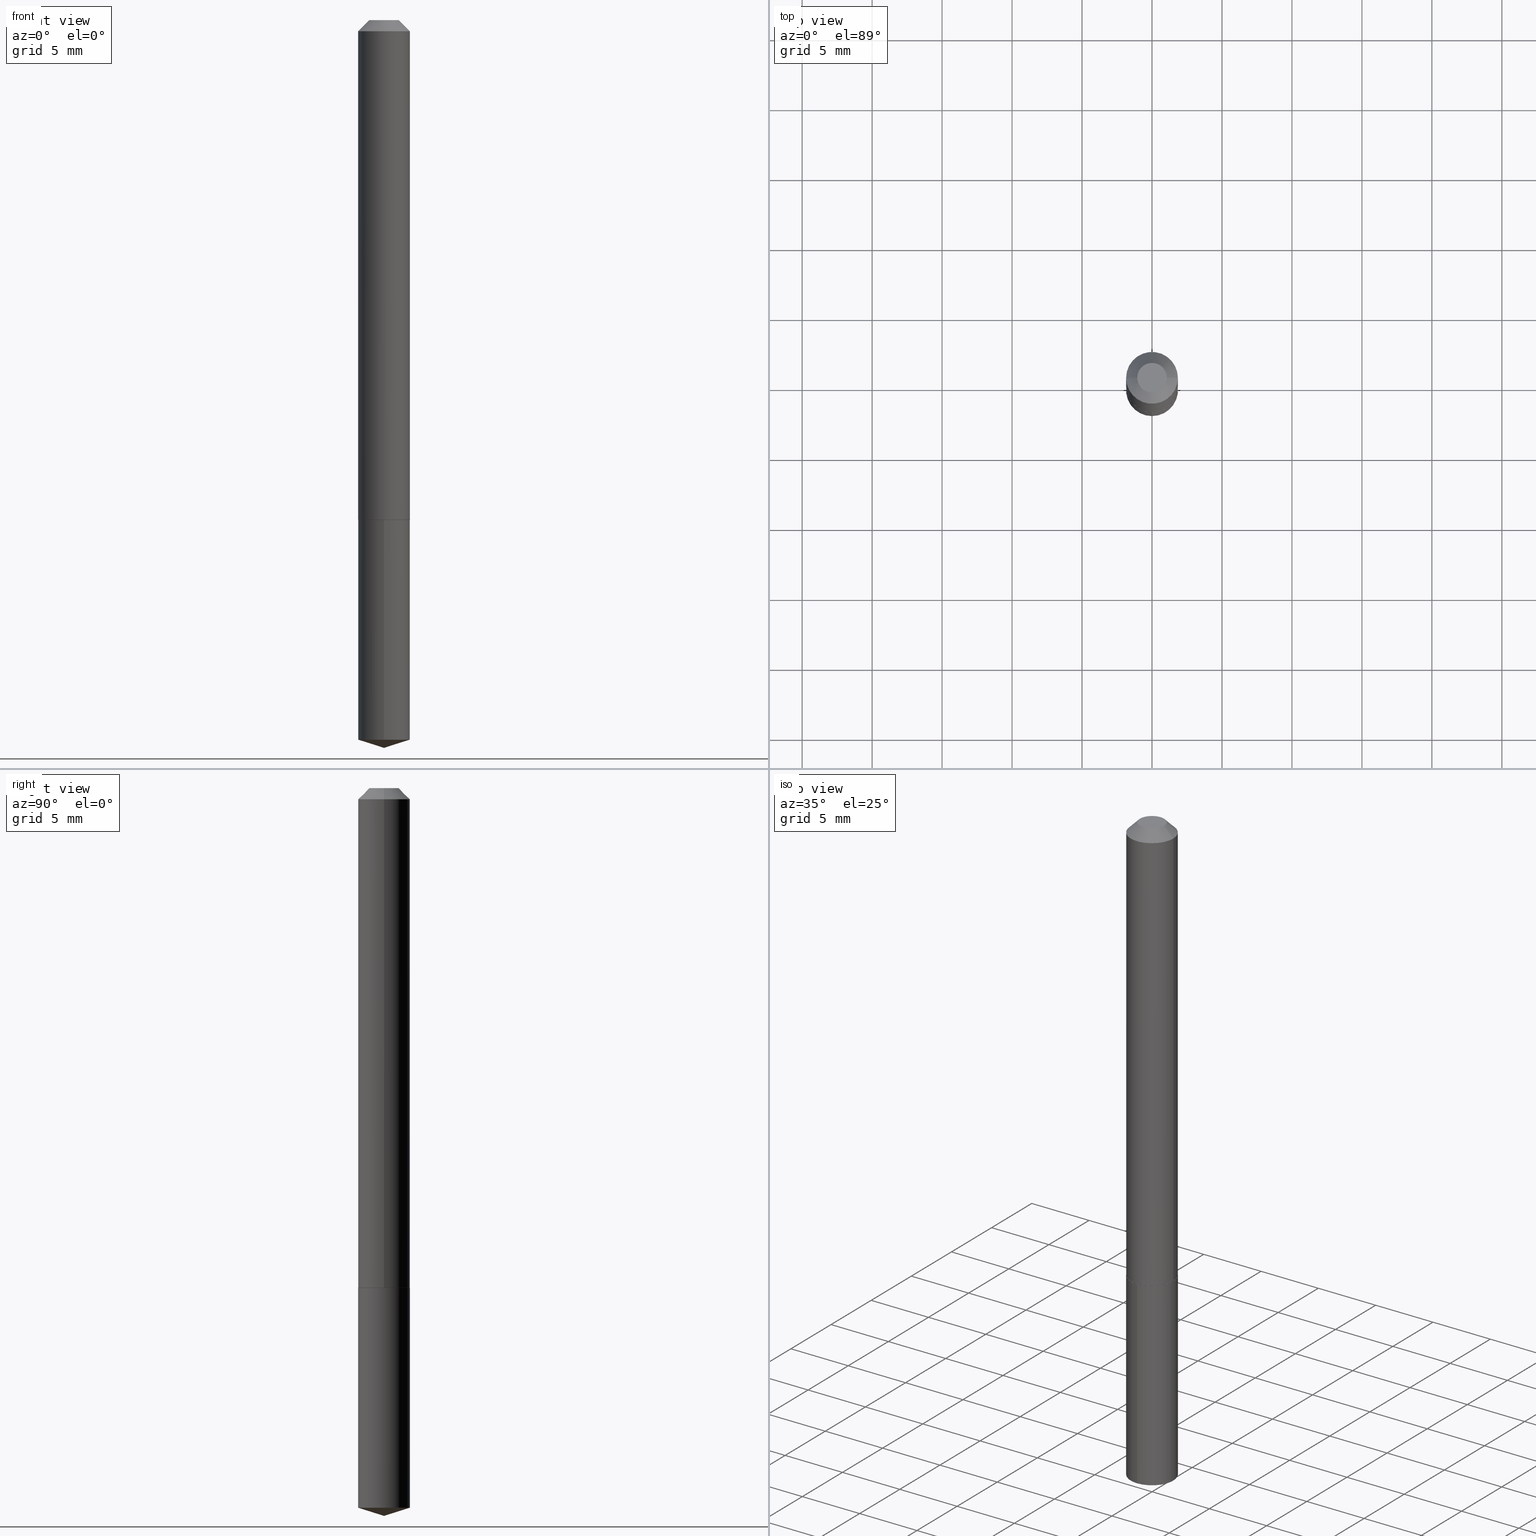
[diagram: canonical four-view strip — front | top / right | iso, engineering-drawing reading convention]
A machine part, canonical four-view strip (front | top / right | iso — engineering-drawing reading convention). The complete STEP part file that produces these views, byte-faithful:
ISO-10303-21;
HEADER;
FILE_DESCRIPTION (( 'STEP AP203' ),
    '1' );
FILE_NAME ('68685.STEP',
    '2024-04-23T13:36:15',
    ( '' ),
    ( '' ),
    'SwSTEP 2.0',
    'SolidWorks 2023',
    '' );
FILE_SCHEMA (( 'CONFIG_CONTROL_DESIGN' ));
ENDSEC;

DATA;
#1 = AXIS2_PLACEMENT_3D ( 'NONE', #245, #310, #218 ) ;
#2 = ORIENTED_EDGE ( 'NONE', *, *, #133, .T. ) ;
#3 = DIRECTION ( 'NONE',  ( -6.982962677686268288E-15, -1.000000000000000000, 3.500519750498734803E-15 ) ) ;
#4 = EDGE_CURVE ( 'NONE', #235, #152, #99, .T. ) ;
#5 = APPROVAL_STATUS ( 'not_yet_approved' ) ;
#6 = DIRECTION ( 'NONE',  ( 1.000000000000000000, -6.982962677686262766E-15, 0.000000000000000000 ) ) ;
#7 = DIRECTION ( 'NONE',  ( -2.445468806185136597E-29, 3.491481338843145583E-15, 1.000000000000000000 ) ) ;
#8 = DIRECTION ( 'NONE',  ( 2.438088387897960049E-29, -3.491481338843145188E-15, -1.000000000000000000 ) ) ;
#9 = APPROVAL ( #5, 'UNSPECIFIED' ) ;
#10 = CARTESIAN_POINT ( 'NONE',  ( 0.07285000000000008136, -5.087088310694450726E-16, 3.552294781167343726E-30 ) ) ;
#11 = AXIS2_PLACEMENT_3D ( 'NONE', #38, #90, #68 ) ;
#12 = LINE ( 'NONE', #347, #234 ) ;
#13 = CARTESIAN_POINT ( 'NONE',  ( 3.435883672690118017E-29, -4.905531281074621455E-15, -1.405000000000000471 ) ) ;
#14 = DIRECTION ( 'NONE',  ( -2.445479730124527692E-29, 3.491465695140185611E-15, 1.000000000000000000 ) ) ;
#15 = COORDINATED_UNIVERSAL_TIME_OFFSET ( 5, 0, .BEHIND. ) ;
#16 = CARTESIAN_POINT ( 'NONE',  ( 3.437106407093210258E-29, -4.907277021744042169E-15, -1.405500000000000416 ) ) ;
#17 = CARTESIAN_POINT ( 'NONE',  ( -0.07284999999999999809, -1.989689653455500531E-15, -0.03125000000000020817 ) ) ;
#18 = PRODUCT_RELATED_PRODUCT_CATEGORY ( 'detail', '', ( #43 ) ) ;
#19 = ADVANCED_FACE ( 'NONE', ( #367 ), #211, .T. ) ;
#20 = CALENDAR_DATE ( 2024, 23, 4 ) ;
#21 = DESIGN_CONTEXT ( 'detailed design', #151, 'design' ) ;
#22 = ORIENTED_EDGE ( 'NONE', *, *, #53, .F. ) ;
#23 = EDGE_LOOP ( 'NONE', ( #261, #69, #302, #293 ) ) ;
#24 = EDGE_CURVE ( 'NONE', #387, #87, #39, .T. ) ;
#25 = ORIENTED_EDGE ( 'NONE', *, *, #255, .F. ) ;
#26 = CIRCLE ( 'NONE', #376, 0.07284999999999999809 ) ;
#27 = AXIS2_PLACEMENT_3D ( 'NONE', #203, #253, #374 ) ;
#28 = DIRECTION ( 'NONE',  ( -2.445479730124527692E-29, 3.491465695140185611E-15, 1.000000000000000000 ) ) ;
#29 = ORIENTED_EDGE ( 'NONE', *, *, #219, .T. ) ;
#30 = DIRECTION ( 'NONE',  ( 1.000000000000000000, -6.982962677686265922E-15, 0.000000000000000000 ) ) ;
#31 = PRODUCT_DEFINITION_SHAPE ( 'NONE', 'NONE',  #319 ) ;
#32 = ORIENTED_EDGE ( 'NONE', *, *, #274, .F. ) ;
#33 = AXIS2_PLACEMENT_3D ( 'NONE', #335, #298, #30 ) ;
#34 = VECTOR ( 'NONE', #232, 39.37007874015748143 ) ;
#35 = VERTEX_POINT ( 'NONE', #166 ) ;
#36 = DIRECTION ( 'NONE',  ( -2.445468806185136877E-29, 3.491481338843145188E-15, 1.000000000000000000 ) ) ;
#37 = LINE ( 'NONE', #336, #370 ) ;
#38 = CARTESIAN_POINT ( 'NONE',  ( 0.000000000000000000, 0.000000000000000000, 0.000000000000000000 ) ) ;
#39 = LINE ( 'NONE', #244, #305 ) ;
#40 =( NAMED_UNIT ( * ) PLANE_ANGLE_UNIT ( ) SI_UNIT ( $, .RADIAN. ) );
#41 = CARTESIAN_POINT ( 'NONE',  ( -9.127235878254760257E-28, 1.303115287779123031E-13, 37.32287874015748486 ) ) ;
#42 = APPLICATION_CONTEXT ( 'configuration controlled 3d designs of mechanical parts and assemblies' ) ;
#43 = PRODUCT ( '68685', '68685', '', ( #154 ) ) ;
#44 = PLANE ( 'NONE',  #331 ) ;
#45 = CYLINDRICAL_SURFACE ( 'NONE', #201, 0.07285000000000008136 ) ;
#46 = CARTESIAN_POINT ( 'NONE',  ( 4.950199262242735312E-29, -7.067553278479676928E-15, -2.024230483230166300 ) ) ;
#47 = CIRCLE ( 'NONE', #199, 0.07235000000000024745 ) ;
#48 = ADVANCED_FACE ( 'NONE', ( #273 ), #65, .F. ) ;
#49 = CARTESIAN_POINT ( 'NONE',  ( 0.04159999999999999809, -4.471463938419002611E-16, 2.449293598320496415E-19 ) ) ;
#50 = FACE_OUTER_BOUND ( 'NONE', #356, .T. ) ;
#51 = DATE_TIME_ROLE ( 'creation_date' ) ;
#52 = DIRECTION ( 'NONE',  ( -6.982962677686265922E-15, -1.000000000000000000, 3.749962928845934523E-15 ) ) ;
#53 = EDGE_CURVE ( 'NONE', #189, #87, #162, .T. ) ;
#54 = CARTESIAN_POINT ( 'NONE',  ( 5.176303830012824729E-16, 0.07284999999999293430, -2.024230483230166744 ) ) ;
#55 = VECTOR ( 'NONE', #329, 39.37007874015748143 ) ;
#56 = PERSON ( 'UNSPECIFIED', 'UNSPECIFIED', 'UNSPECIFIED', ('UNSPECIFIED'), ('UNSPECIFIED'), ('UNSPECIFIED') ) ;
#57 = PERSON_AND_ORGANIZATION ( #56, #183 ) ;
#58 = DATE_AND_TIME ( #353, #288 ) ;
#59 = VECTOR ( 'NONE', #36, 39.37007874015748143 ) ;
#60 = SECURITY_CLASSIFICATION ( '', '', #291 ) ;
#61 = ORIENTED_EDGE ( 'NONE', *, *, #24, .F. ) ;
#62 = DATE_TIME_ROLE ( 'classification_date' ) ;
#63 = CARTESIAN_POINT ( 'NONE',  ( -5.989671091818665474E-48, 8.551662891793964028E-34, 2.449293598294711584E-19 ) ) ;
#64 = ORIENTED_EDGE ( 'NONE', *, *, #70, .T. ) ;
#65 = PLANE ( 'NONE',  #357 ) ;
#66 = CONICAL_SURFACE ( 'NONE', #147, 0.07284999999999999809, 0.7853981633974449483 ) ;
#67 = DIRECTION ( 'NONE',  ( -6.659769872151627355E-15, -0.9537169507482260444, 0.3007057995042761722 ) ) ;
#68 = DIRECTION ( 'NONE',  ( 1.000000000000000000, 0.000000000000000000, 0.000000000000000000 ) ) ;
#69 = ORIENTED_EDGE ( 'NONE', *, *, #117, .T. ) ;
#70 = EDGE_CURVE ( 'NONE', #214, #152, #375, .T. ) ;
#71 = MANIFOLD_SOLID_BREP ( 'Body-Move/Copy2[2]', #241 ) ;
#72 = ORIENTED_EDGE ( 'NONE', *, *, #165, .F. ) ;
#73 = CLOSED_SHELL ( 'NONE', ( #148, #366, #315, #233, #193 ) ) ;
#74 =( NAMED_UNIT ( * ) SI_UNIT ( $, .STERADIAN. ) SOLID_ANGLE_UNIT ( ) );
#75 = ORIENTED_EDGE ( 'NONE', *, *, #81, .T. ) ;
#76 = FACE_OUTER_BOUND ( 'NONE', #113, .T. ) ;
#77 = DIRECTION ( 'NONE',  ( -2.445479730124527692E-29, 3.491465695140185611E-15, 1.000000000000000000 ) ) ;
#78 = CARTESIAN_POINT ( 'NONE',  ( 3.437106407093210258E-29, -4.907277021744042169E-15, -1.405500000000000416 ) ) ;
#79 = AXIS2_PLACEMENT_3D ( 'NONE', #303, #247, #3 ) ;
#80 = EDGE_CURVE ( 'NONE', #189, #157, #390, .T. ) ;
#81 = EDGE_CURVE ( 'NONE', #109, #35, #141, .T. ) ;
#82 = CARTESIAN_POINT ( 'NONE',  ( 7.642090019328602662E-31, -1.091087918388490267E-16, -0.03125000000000020817 ) ) ;
#83 = CIRCLE ( 'NONE', #118, 0.07285000000000016462 ) ;
#84 = EDGE_CURVE ( 'NONE', #152, #214, #175, .T. ) ;
#85 = CARTESIAN_POINT ( 'NONE',  ( 3.437106407093210258E-29, -4.907277021744042169E-15, -1.405500000000000416 ) ) ;
#86 = ORIENTED_EDGE ( 'NONE', *, *, #24, .T. ) ;
#87 = VERTEX_POINT ( 'NONE', #197 ) ;
#88 = FACE_OUTER_BOUND ( 'NONE', #270, .T. ) ;
#89 = EDGE_LOOP ( 'NONE', ( #61, #190, #296 ) ) ;
#90 = DIRECTION ( 'NONE',  ( 0.000000000000000000, 0.000000000000000000, 1.000000000000000000 ) ) ;
#91 = ORIENTED_EDGE ( 'NONE', *, *, #92, .T. ) ;
#92 = EDGE_CURVE ( 'NONE', #300, #157, #26, .T. ) ;
#93 = AXIS2_PLACEMENT_3D ( 'NONE', #136, #130, #186 ) ;
#94 = ORIENTED_EDGE ( 'NONE', *, *, #81, .F. ) ;
#95 = CARTESIAN_POINT ( 'NONE',  ( 4.950199262242735312E-29, -7.067553278479676928E-15, -2.024230483230166300 ) ) ;
#96 = PERSON_AND_ORGANIZATION ( #56, #183 ) ;
#97 = ORIENTED_EDGE ( 'NONE', *, *, #84, .F. ) ;
#98 = CONICAL_SURFACE ( 'NONE', #93, 0.07284999999999999809, 0.7853981633974449483 ) ;
#99 = LINE ( 'NONE', #220, #280 ) ;
#100 = FACE_OUTER_BOUND ( 'NONE', #238, .T. ) ;
#101 = APPROVAL_DATE_TIME ( #216, #9 ) ;
#102 = DIRECTION ( 'NONE',  ( 2.445479730124527411E-29, -3.491465695140185611E-15, -1.000000000000000000 ) ) ;
#103 = EDGE_CURVE ( 'NONE', #180, #214, #12, .T. ) ;
#104 = VECTOR ( 'NONE', #223, 39.37007874015748143 ) ;
#105 = CARTESIAN_POINT ( 'NONE',  ( 5.006386372776774665E-29, -7.147728571090988468E-15, -2.047200000000000131 ) ) ;
#106 = CYLINDRICAL_SURFACE ( 'NONE', #325, 0.07284999999999999809 ) ;
#107 = APPROVAL ( #208, 'UNSPECIFIED' ) ;
#108 = PERSON_AND_ORGANIZATION ( #56, #183 ) ;
#109 = VERTEX_POINT ( 'NONE', #373 ) ;
#110 = AXIS2_PLACEMENT_3D ( 'NONE', #254, #276, #176 ) ;
#111 = APPROVAL_PERSON_ORGANIZATION ( #173, #107, #149 ) ;
#112 = APPROVAL_ROLE ( '' ) ;
#113 = EDGE_LOOP ( 'NONE', ( #182, #86, #22 ) ) ;
#114 = ORIENTED_EDGE ( 'NONE', *, *, #4, .T. ) ;
#115 = DIMENSIONAL_EXPONENTS ( 1.000000000000000000, 0.000000000000000000, 0.000000000000000000, 0.000000000000000000, 0.000000000000000000, 0.000000000000000000, 0.000000000000000000 ) ;
#116 = COORDINATED_UNIVERSAL_TIME_OFFSET ( 5, 0, .BEHIND. ) ;
#117 = EDGE_CURVE ( 'NONE', #160, #272, #267, .T. ) ;
#118 = AXIS2_PLACEMENT_3D ( 'NONE', #328, #265, #144 ) ;
#119 = CALENDAR_DATE ( 2024, 23, 4 ) ;
#120 = UNCERTAINTY_MEASURE_WITH_UNIT (LENGTH_MEASURE( 1.000000000000000082E-05 ), #191, 'distance_accuracy_value', 'NONE');
#121 = ORIENTED_EDGE ( 'NONE', *, *, #165, .T. ) ;
#122 = ORIENTED_EDGE ( 'NONE', *, *, #103, .T. ) ;
#123 = DIRECTION ( 'NONE',  ( -1.000000000000000000, 6.982962677686265922E-15, 0.000000000000000000 ) ) ;
#124 = CARTESIAN_POINT ( 'NONE',  ( 5.176303830012672873E-16, 0.07284999999999508535, -1.405500000000000638 ) ) ;
#125 = DIRECTION ( 'NONE',  ( 2.445468806185136597E-29, -3.491481338843145583E-15, -1.000000000000000000 ) ) ;
#126 = PERSON_AND_ORGANIZATION_ROLE ( 'design_owner' ) ;
#127 = ORIENTED_EDGE ( 'NONE', *, *, #372, .F. ) ;
#128 = DIRECTION ( 'NONE',  ( 0.7071067811865595631, -2.468850131082382884E-15, 0.7071067811865354713 ) ) ;
#129 = ORIENTED_EDGE ( 'NONE', *, *, #4, .F. ) ;
#130 = DIRECTION ( 'NONE',  ( 2.445468806185136597E-29, -3.491481338843145583E-15, -1.000000000000000000 ) ) ;
#131 = CALENDAR_DATE ( 2024, 23, 4 ) ;
#132 = DIRECTION ( 'NONE',  ( -1.000000000000000000, 6.982962677686265922E-15, -4.876176775795935793E-29 ) ) ;
#133 = EDGE_CURVE ( 'NONE', #87, #189, #358, .T. ) ;
#134 = AXIS2_PLACEMENT_3D ( 'NONE', #240, #170, #312 ) ;
#135 = CARTESIAN_POINT ( 'NONE',  ( 0.000000000000000000, 0.000000000000000000, 0.000000000000000000 ) ) ;
#136 = CARTESIAN_POINT ( 'NONE',  ( 7.642090019328602662E-31, -1.091087918388490267E-16, -0.03125000000000020817 ) ) ;
#137 = DIRECTION ( 'NONE',  ( -0.7071067811865451302, 2.468850131082231817E-15, -0.7071067811865499042 ) ) ;
#138 = CC_DESIGN_PERSON_AND_ORGANIZATION_ASSIGNMENT ( #381, #386, ( #388 ) ) ;
#139 = DIRECTION ( 'NONE',  ( 1.000000000000000000, -6.982962677686262766E-15, 0.000000000000000000 ) ) ;
#140 = DIRECTION ( 'NONE',  ( 1.000000000000000000, -6.982962677686266711E-15, 4.876176775795936353E-29 ) ) ;
#141 = CIRCLE ( 'NONE', #266, 0.07235000000000024745 ) ;
#142 = LOCAL_TIME ( 9, 36, 15.00000000000000000, #181 ) ;
#143 = FACE_OUTER_BOUND ( 'NONE', #362, .T. ) ;
#144 = DIRECTION ( 'NONE',  ( 1.000000000000000000, -6.982962677686262766E-15, 0.000000000000000000 ) ) ;
#145 = DIRECTION ( 'NONE',  ( -2.445479730124527692E-29, 3.491465695140185611E-15, 1.000000000000000000 ) ) ;
#146 = ORIENTED_EDGE ( 'NONE', *, *, #92, .F. ) ;
#147 = AXIS2_PLACEMENT_3D ( 'NONE', #297, #125, #123 ) ;
#148 = ADVANCED_FACE ( 'NONE', ( #50 ), #204, .T. ) ;
#149 = APPROVAL_ROLE ( '' ) ;
#150 = ORIENTED_EDGE ( 'NONE', *, *, #278, .T. ) ;
#151 = APPLICATION_CONTEXT ( 'configuration controlled 3d designs of mechanical parts and assemblies' ) ;
#152 = VERTEX_POINT ( 'NONE', #172 ) ;
#153 = AXIS2_PLACEMENT_3D ( 'NONE', #41, #28, #363 ) ;
#154 = MECHANICAL_CONTEXT ( 'NONE', #42, 'mechanical' ) ;
#155 = DIRECTION ( 'NONE',  ( -2.445479730124527692E-29, 3.491465695140185611E-15, 1.000000000000000000 ) ) ;
#156 = EDGE_CURVE ( 'NONE', #387, #189, #379, .T. ) ;
#157 = VERTEX_POINT ( 'NONE', #342 ) ;
#158 = DIRECTION ( 'NONE',  ( 1.000000000000000000, -6.982962677686266711E-15, 4.876176775795936353E-29 ) ) ;
#159 = APPLICATION_PROTOCOL_DEFINITION ( 'international standard', 'config_control_design', 1994, #42 ) ;
#160 = VERTEX_POINT ( 'NONE', #277 ) ;
#161 = CC_DESIGN_DATE_AND_TIME_ASSIGNMENT ( #316, #51, ( #319 ) ) ;
#162 = CIRCLE ( 'NONE', #369, 0.07284999999999999809 ) ;
#163 = ORIENTED_EDGE ( 'NONE', *, *, #326, .T. ) ;
#164 = FACE_OUTER_BOUND ( 'NONE', #330, .T. ) ;
#165 = EDGE_CURVE ( 'NONE', #157, #300, #287, .T. ) ;
#166 = CARTESIAN_POINT ( 'NONE',  ( -0.07235000000000024745, -4.390550125247498303E-15, -1.405500000000000416 ) ) ;
#167 = DIRECTION ( 'NONE',  ( -0.7071067811865595631, 7.493145998870398336E-15, 0.7071067811865354713 ) ) ;
#168 = CC_DESIGN_PERSON_AND_ORGANIZATION_ASSIGNMENT ( #108, #286, ( #388 ) ) ;
#169 = CYLINDRICAL_SURFACE ( 'NONE', #260, 0.07285000000000008136 ) ;
#170 = DIRECTION ( 'NONE',  ( -2.438088387897960049E-29, 3.491481338843145188E-15, 1.000000000000000000 ) ) ;
#171 = CARTESIAN_POINT ( 'NONE',  ( 0.07285000000000016462, -5.414240112144066527E-15, -1.405000000000000471 ) ) ;
#172 = CARTESIAN_POINT ( 'NONE',  ( 0.07284999999999999809, -6.178176229082934830E-16, -0.03125000000000020817 ) ) ;
#173 = PERSON_AND_ORGANIZATION ( #56, #183 ) ;
#174 = CARTESIAN_POINT ( 'NONE',  ( 0.000000000000000000, 0.000000000000000000, 0.000000000000000000 ) ) ;
#175 = CIRCLE ( 'NONE', #221, 0.07284999999999999809 ) ;
#176 = DIRECTION ( 'NONE',  ( 1.000000000000000000, -6.982962677686262766E-15, 0.000000000000000000 ) ) ;
#177 = FACE_OUTER_BOUND ( 'NONE', #217, .T. ) ;
#178 = LOCAL_TIME ( 9, 36, 15.00000000000000000, #15 ) ;
#179 = EDGE_LOOP ( 'NONE', ( #250, #323, #150, #72 ) ) ;
#180 = VERTEX_POINT ( 'NONE', #318 ) ;
#181 = COORDINATED_UNIVERSAL_TIME_OFFSET ( 5, 0, .BEHIND. ) ;
#182 = ORIENTED_EDGE ( 'NONE', *, *, #156, .F. ) ;
#183 = ORGANIZATION ( 'UNSPECIFIED', 'UNSPECIFIED', '' ) ;
#184 = DIRECTION ( 'NONE',  ( -6.982962677686265922E-15, -1.000000000000000000, 3.749962928845934523E-15 ) ) ;
#185 = DIRECTION ( 'NONE',  ( 1.000000000000000000, -6.982962677686265922E-15, 4.876201187447971567E-29 ) ) ;
#186 = DIRECTION ( 'NONE',  ( -1.000000000000000000, 6.982962677686265922E-15, 0.000000000000000000 ) ) ;
#187 = DIRECTION ( 'NONE',  ( -6.982962677686265922E-15, -1.000000000000000000, 3.749962928845934523E-15 ) ) ;
#188 = CC_DESIGN_SECURITY_CLASSIFICATION ( #60, ( #388 ) ) ;
#189 = VERTEX_POINT ( 'NONE', #54 ) ;
#190 = ORIENTED_EDGE ( 'NONE', *, *, #156, .T. ) ;
#191 =( CONVERSION_BASED_UNIT ( 'INCH', #248 ) LENGTH_UNIT ( ) NAMED_UNIT ( #115 ) );
#192 = ORIENTED_EDGE ( 'NONE', *, *, #255, .T. ) ;
#193 = ADVANCED_FACE ( 'NONE', ( #143 ), #44, .F. ) ;
#194 = MANIFOLD_SOLID_BREP ( 'Body-Move/Copy2[1]', #73 ) ;
#195 = EDGE_LOOP ( 'NONE', ( #334, #192, #163, #284 ) ) ;
#196 = DIRECTION ( 'NONE',  ( -2.445468806185136597E-29, 3.491481338843145583E-15, 1.000000000000000000 ) ) ;
#197 = CARTESIAN_POINT ( 'NONE',  ( -5.087088310693949799E-16, -0.07285000000000707576, -2.024230483230165856 ) ) ;
#198 = AXIS2_PLACEMENT_3D ( 'NONE', #246, #364, #6 ) ;
#199 = AXIS2_PLACEMENT_3D ( 'NONE', #236, #196, #251 ) ;
#200 = DIRECTION ( 'NONE',  ( -2.445479730124527692E-29, 3.491465695140185611E-15, 1.000000000000000000 ) ) ;
#201 = AXIS2_PLACEMENT_3D ( 'NONE', #135, #7, #158 ) ;
#202 = CALENDAR_DATE ( 2024, 23, 4 ) ;
#203 = CARTESIAN_POINT ( 'NONE',  ( 3.437106407093210258E-29, -4.907277021744042169E-15, -1.405500000000000416 ) ) ;
#204 = CYLINDRICAL_SURFACE ( 'NONE', #313, 0.07284999999999999809 ) ;
#205 = ADVANCED_FACE ( 'NONE', ( #230 ), #169, .T. ) ;
#206 = VECTOR ( 'NONE', #167, 39.37007874015748143 ) ;
#207 = LOCAL_TIME ( 9, 36, 15.00000000000000000, #259 ) ;
#208 = APPROVAL_STATUS ( 'not_yet_approved' ) ;
#209 = CC_DESIGN_PERSON_AND_ORGANIZATION_ASSIGNMENT ( #96, #126, ( #43 ) ) ;
#210 = ADVANCED_FACE ( 'NONE', ( #100 ), #348, .T. ) ;
#211 = CONICAL_SURFACE ( 'NONE', #198, 0.07285000000000016462, 0.7853981633974653764 ) ;
#212 = EDGE_LOOP ( 'NONE', ( #383, #359 ) ) ;
#213 = FACE_OUTER_BOUND ( 'NONE', #262, .T. ) ;
#214 = VERTEX_POINT ( 'NONE', #17 ) ;
#215 = DIRECTION ( 'NONE',  ( -2.445479730124527972E-29, 3.491465695140185611E-15, 1.000000000000000000 ) ) ;
#216 = DATE_AND_TIME ( #131, #341 ) ;
#217 = EDGE_LOOP ( 'NONE', ( #94, #25 ) ) ;
#218 = DIRECTION ( 'NONE',  ( 1.000000000000000000, -6.982962677686265922E-15, 4.876201187447971567E-29 ) ) ;
#219 = EDGE_CURVE ( 'NONE', #272, #160, #83, .T. ) ;
#220 = CARTESIAN_POINT ( 'NONE',  ( 0.07284999999999999809, -6.088960709765050907E-16, -0.03125000000000020817 ) ) ;
#221 = AXIS2_PLACEMENT_3D ( 'NONE', #82, #343, #311 ) ;
#222 = AXIS2_PLACEMENT_3D ( 'NONE', #46, #200, #314 ) ;
#223 = DIRECTION ( 'NONE',  ( -2.445468806185136877E-29, 3.491481338843145188E-15, 1.000000000000000000 ) ) ;
#224 = CARTESIAN_POINT ( 'NONE',  ( -0.07285000000000008136, 5.176303830012335635E-16, -3.583444213250702632E-30 ) ) ;
#225 = CC_DESIGN_DATE_AND_TIME_ASSIGNMENT ( #58, #62, ( #60 ) ) ;
#226 = LINE ( 'NONE', #340, #55 ) ;
#227 = EDGE_CURVE ( 'NONE', #235, #180, #295, .T. ) ;
#228 = CARTESIAN_POINT ( 'NONE',  ( -5.087088310694100669E-16, -0.07285000000000491083, -1.405499999999999972 ) ) ;
#229 = PERSON_AND_ORGANIZATION ( #56, #183 ) ;
#230 = FACE_OUTER_BOUND ( 'NONE', #23, .T. ) ;
#231 = CC_DESIGN_APPROVAL ( #9, ( #319 ) ) ;
#232 = DIRECTION ( 'NONE',  ( 6.776566513254252615E-15, 0.9537169507482280428, 0.3007057995042695109 ) ) ;
#233 = ADVANCED_FACE ( 'NONE', ( #292 ), #106, .T. ) ;
#234 = VECTOR ( 'NONE', #137, 39.37007874015748143 ) ;
#235 = VERTEX_POINT ( 'NONE', #49 ) ;
#236 = CARTESIAN_POINT ( 'NONE',  ( 3.437106407093210258E-29, -4.907277021744042169E-15, -1.405500000000000416 ) ) ;
#237 = ORIENTED_EDGE ( 'NONE', *, *, #278, .F. ) ;
#238 = EDGE_LOOP ( 'NONE', ( #75, #332, #389, #352 ) ) ;
#239 = CARTESIAN_POINT ( 'NONE',  ( 3.437106407093210258E-29, -4.907277021744042169E-15, -1.405500000000000416 ) ) ;
#240 = CARTESIAN_POINT ( 'NONE',  ( 3.437106407093210258E-29, -4.907277021744042169E-15, -1.405500000000000416 ) ) ;
#241 = CLOSED_SHELL ( 'NONE', ( #354, #384, #210, #349, #19, #205, #290, #48 ) ) ;
#242 = CIRCLE ( 'NONE', #1, 0.04159999999999999809 ) ;
#243 = APPROVAL_ROLE ( '' ) ;
#244 = CARTESIAN_POINT ( 'NONE',  ( 5.006355396317304915E-29, -7.147772545540009329E-15, -2.047200000000000131 ) ) ;
#245 = CARTESIAN_POINT ( 'NONE',  ( -5.989671091818665474E-48, 8.551662891793964028E-34, 2.449293598294711584E-19 ) ) ;
#246 = CARTESIAN_POINT ( 'NONE',  ( 3.435883672690118017E-29, -4.905531281074621455E-15, -1.405000000000000471 ) ) ;
#247 = DIRECTION ( 'NONE',  ( -2.445479730124527692E-29, 3.491465695140185611E-15, 1.000000000000000000 ) ) ;
#248 = LENGTH_MEASURE_WITH_UNIT ( LENGTH_MEASURE( 0.02539999999999999897 ), #299 );
#249 = LINE ( 'NONE', #10, #104 ) ;
#250 = ORIENTED_EDGE ( 'NONE', *, *, #80, .F. ) ;
#251 = DIRECTION ( 'NONE',  ( 1.000000000000000000, -6.982962677686261977E-15, 0.000000000000000000 ) ) ;
#252 = DIRECTION ( 'NONE',  ( -6.982962677686265922E-15, -1.000000000000000000, 3.749962928845934523E-15 ) ) ;
#253 = DIRECTION ( 'NONE',  ( -2.445479730124527692E-29, 3.491465695140185611E-15, 1.000000000000000000 ) ) ;
#254 = CARTESIAN_POINT ( 'NONE',  ( 3.435883672690118017E-29, -4.905531281074621455E-15, -1.405000000000000471 ) ) ;
#255 = EDGE_CURVE ( 'NONE', #35, #109, #47, .T. ) ;
#256 = DATE_AND_TIME ( #119, #142 ) ;
#257 = DIRECTION ( 'NONE',  ( -2.445468806185136597E-29, 3.491481338843145583E-15, 1.000000000000000000 ) ) ;
#258 = ORIENTED_EDGE ( 'NONE', *, *, #380, .T. ) ;
#259 = COORDINATED_UNIVERSAL_TIME_OFFSET ( 5, 0, .BEHIND. ) ;
#260 = AXIS2_PLACEMENT_3D ( 'NONE', #174, #279, #140 ) ;
#261 = ORIENTED_EDGE ( 'NONE', *, *, #380, .F. ) ;
#262 = EDGE_LOOP ( 'NONE', ( #129, #127, #122, #64 ) ) ;
#263 = PLANE ( 'NONE',  #134 ) ;
#264 = DATE_AND_TIME ( #20, #207 ) ;
#265 = DIRECTION ( 'NONE',  ( -2.445468806185136597E-29, 3.491481338843145583E-15, 1.000000000000000000 ) ) ;
#266 = AXIS2_PLACEMENT_3D ( 'NONE', #239, #377, #281 ) ;
#267 = CIRCLE ( 'NONE', #275, 0.07285000000000016462 ) ;
#268 = ORIENTED_EDGE ( 'NONE', *, *, #103, .F. ) ;
#269 = CARTESIAN_POINT ( 'NONE',  ( -2.994835545909332737E-48, 4.275831445896982014E-34, 1.224646799147355792E-19 ) ) ;
#270 = EDGE_LOOP ( 'NONE', ( #337, #114, #322, #268 ) ) ;
#271 = APPROVAL_PERSON_ORGANIZATION ( #57, #360, #112 ) ;
#272 = VERTEX_POINT ( 'NONE', #171 ) ;
#273 = FACE_OUTER_BOUND ( 'NONE', #212, .T. ) ;
#274 = EDGE_CURVE ( 'NONE', #272, #152, #249, .T. ) ;
#275 = AXIS2_PLACEMENT_3D ( 'NONE', #13, #317, #139 ) ;
#276 = DIRECTION ( 'NONE',  ( -2.445468806185136597E-29, 3.491481338843145583E-15, 1.000000000000000000 ) ) ;
#277 = CARTESIAN_POINT ( 'NONE',  ( -0.07285000000000016462, -4.387900898073387102E-15, -1.405000000000000471 ) ) ;
#278 = EDGE_CURVE ( 'NONE', #87, #300, #226, .T. ) ;
#279 = DIRECTION ( 'NONE',  ( -2.445468806185136597E-29, 3.491481338843145583E-15, 1.000000000000000000 ) ) ;
#280 = VECTOR ( 'NONE', #307, 39.37007874015748143 ) ;
#281 = DIRECTION ( 'NONE',  ( 1.000000000000000000, -6.982962677686261977E-15, 0.000000000000000000 ) ) ;
#282 =( GEOMETRIC_REPRESENTATION_CONTEXT ( 3 ) GLOBAL_UNCERTAINTY_ASSIGNED_CONTEXT ( ( #120 ) ) GLOBAL_UNIT_ASSIGNED_CONTEXT ( ( #191, #40, #74 ) ) REPRESENTATION_CONTEXT ( 'NONE', 'WORKASPACE' ) );
#283 = CC_DESIGN_PERSON_AND_ORGANIZATION_ASSIGNMENT ( #327, #285, ( #60 ) ) ;
#284 = ORIENTED_EDGE ( 'NONE', *, *, #117, .F. ) ;
#285 = PERSON_AND_ORGANIZATION_ROLE ( 'classification_officer' ) ;
#286 = PERSON_AND_ORGANIZATION_ROLE ( 'design_supplier' ) ;
#287 = CIRCLE ( 'NONE', #27, 0.07284999999999999809 ) ;
#288 = LOCAL_TIME ( 9, 36, 15.00000000000000000, #116 ) ;
#289 = ORIENTED_EDGE ( 'NONE', *, *, #80, .T. ) ;
#290 = ADVANCED_FACE ( 'NONE', ( #213 ), #98, .T. ) ;
#291 = SECURITY_CLASSIFICATION_LEVEL ( 'unclassified' ) ;
#292 = FACE_OUTER_BOUND ( 'NONE', #179, .T. ) ;
#293 = ORIENTED_EDGE ( 'NONE', *, *, #70, .F. ) ;
#294 = ADVANCED_BREP_SHAPE_REPRESENTATION ( '68685', ( #194, #71, #11 ), #282 ) ;
#295 = CIRCLE ( 'NONE', #339, 0.04159999999999999809 ) ;
#296 = ORIENTED_EDGE ( 'NONE', *, *, #133, .F. ) ;
#297 = CARTESIAN_POINT ( 'NONE',  ( 7.642090019328602662E-31, -1.091087918388490267E-16, -0.03125000000000020817 ) ) ;
#298 = DIRECTION ( 'NONE',  ( -2.445468806185136597E-29, 3.491481338843145583E-15, 1.000000000000000000 ) ) ;
#299 =( LENGTH_UNIT ( ) NAMED_UNIT ( * ) SI_UNIT ( $, .METRE. ) );
#300 = VERTEX_POINT ( 'NONE', #228 ) ;
#301 = APPLICATION_PROTOCOL_DEFINITION ( 'international standard', 'config_control_design', 1994, #151 ) ;
#302 = ORIENTED_EDGE ( 'NONE', *, *, #274, .T. ) ;
#303 = CARTESIAN_POINT ( 'NONE',  ( -9.127235878254760257E-28, 1.303115287779123031E-13, 37.32287874015748486 ) ) ;
#304 = CC_DESIGN_PERSON_AND_ORGANIZATION_ASSIGNMENT ( #229, #346, ( #319 ) ) ;
#305 = VECTOR ( 'NONE', #67, 39.37007874015748143 ) ;
#306 = CARTESIAN_POINT ( 'NONE',  ( -0.07285000000000016462, -4.387900898073387102E-15, -1.405000000000000471 ) ) ;
#307 = DIRECTION ( 'NONE',  ( 0.7071067811865451302, -7.319954787623248157E-15, -0.7071067811865499042 ) ) ;
#308 = LINE ( 'NONE', #306, #206 ) ;
#309 = CARTESIAN_POINT ( 'NONE',  ( 3.437106407093210258E-29, -4.907277021744042169E-15, -1.405500000000000416 ) ) ;
#310 = DIRECTION ( 'NONE',  ( -2.445468806185136597E-29, 3.491481338843145583E-15, 1.000000000000000000 ) ) ;
#311 = DIRECTION ( 'NONE',  ( 1.000000000000000000, -6.982962677686265922E-15, 0.000000000000000000 ) ) ;
#312 = DIRECTION ( 'NONE',  ( 1.000000000000000000, -6.982962677686265922E-15, 4.876176775795935793E-29 ) ) ;
#313 = AXIS2_PLACEMENT_3D ( 'NONE', #309, #14, #52 ) ;
#314 = DIRECTION ( 'NONE',  ( -6.982962677686265922E-15, -1.000000000000000000, 3.749962928845934523E-15 ) ) ;
#315 = ADVANCED_FACE ( 'NONE', ( #76 ), #320, .T. ) ;
#316 = DATE_AND_TIME ( #202, #178 ) ;
#317 = DIRECTION ( 'NONE',  ( -2.445468806185136597E-29, 3.491481338843145583E-15, 1.000000000000000000 ) ) ;
#318 = CARTESIAN_POINT ( 'NONE',  ( -0.04159999999999999809, 3.450456433111720626E-16, 2.449293598272491167E-19 ) ) ;
#319 = PRODUCT_DEFINITION ( 'UNKNOWN', '', #388, #21 ) ;
#320 = CONICAL_SURFACE ( 'NONE', #153, 124.8659371009139818, 1.265363707695889239 ) ;
#321 = APPROVAL_DATE_TIME ( #264, #107 ) ;
#322 = ORIENTED_EDGE ( 'NONE', *, *, #84, .T. ) ;
#323 = ORIENTED_EDGE ( 'NONE', *, *, #53, .T. ) ;
#324 = APPROVAL_STATUS ( 'not_yet_approved' ) ;
#325 = AXIS2_PLACEMENT_3D ( 'NONE', #85, #145, #184 ) ;
#326 = EDGE_CURVE ( 'NONE', #109, #272, #37, .T. ) ;
#327 = PERSON_AND_ORGANIZATION ( #56, #183 ) ;
#328 = CARTESIAN_POINT ( 'NONE',  ( 3.435883672690118017E-29, -4.905531281074621455E-15, -1.405000000000000471 ) ) ;
#329 = DIRECTION ( 'NONE',  ( -2.445479730124527972E-29, 3.491465695140185611E-15, 1.000000000000000000 ) ) ;
#330 = EDGE_LOOP ( 'NONE', ( #29, #258, #97, #32 ) ) ;
#331 = AXIS2_PLACEMENT_3D ( 'NONE', #16, #102, #371 ) ;
#332 = ORIENTED_EDGE ( 'NONE', *, *, #344, .T. ) ;
#333 = FACE_OUTER_BOUND ( 'NONE', #89, .T. ) ;
#334 = ORIENTED_EDGE ( 'NONE', *, *, #344, .F. ) ;
#335 = CARTESIAN_POINT ( 'NONE',  ( 7.642090019328602662E-31, -1.091087918388490267E-16, -0.03125000000000020817 ) ) ;
#336 = CARTESIAN_POINT ( 'NONE',  ( 0.07285000000000016462, -5.414240112144066527E-15, -1.405000000000000471 ) ) ;
#337 = ORIENTED_EDGE ( 'NONE', *, *, #227, .F. ) ;
#338 = VECTOR ( 'NONE', #215, 39.37007874015748143 ) ;
#339 = AXIS2_PLACEMENT_3D ( 'NONE', #63, #257, #185 ) ;
#340 = CARTESIAN_POINT ( 'NONE',  ( -5.087088310694100669E-16, -0.07285000000000491083, -1.405499999999999972 ) ) ;
#341 = LOCAL_TIME ( 9, 36, 15.00000000000000000, #361 ) ;
#342 = CARTESIAN_POINT ( 'NONE',  ( 5.176303830012825715E-16, 0.07284999999999508535, -1.405500000000000638 ) ) ;
#343 = DIRECTION ( 'NONE',  ( -2.445468806185136597E-29, 3.491481338843145583E-15, 1.000000000000000000 ) ) ;
#344 = EDGE_CURVE ( 'NONE', #35, #160, #308, .T. ) ;
#345 = CONICAL_SURFACE ( 'NONE', #79, 124.8659371009139818, 1.265363707695889239 ) ;
#346 = PERSON_AND_ORGANIZATION_ROLE ( 'creator' ) ;
#347 = CARTESIAN_POINT ( 'NONE',  ( -0.07284999999999999809, 3.996000392305954789E-16, -0.03125000000000020817 ) ) ;
#348 = CONICAL_SURFACE ( 'NONE', #110, 0.07285000000000016462, 0.7853981633974653764 ) ;
#349 = ADVANCED_FACE ( 'NONE', ( #177 ), #263, .F. ) ;
#350 = APPROVAL_DATE_TIME ( #256, #360 ) ;
#351 = CC_DESIGN_APPROVAL ( #360, ( #60 ) ) ;
#352 = ORIENTED_EDGE ( 'NONE', *, *, #326, .F. ) ;
#353 = CALENDAR_DATE ( 2024, 23, 4 ) ;
#354 = ADVANCED_FACE ( 'NONE', ( #88 ), #66, .T. ) ;
#355 = PERSON_AND_ORGANIZATION ( #56, #183 ) ;
#356 = EDGE_LOOP ( 'NONE', ( #2, #289, #146, #237 ) ) ;
#357 = AXIS2_PLACEMENT_3D ( 'NONE', #269, #8, #132 ) ;
#358 = CIRCLE ( 'NONE', #222, 0.07284999999999999809 ) ;
#359 = ORIENTED_EDGE ( 'NONE', *, *, #227, .T. ) ;
#360 = APPROVAL ( #324, 'UNSPECIFIED' ) ;
#361 = COORDINATED_UNIVERSAL_TIME_OFFSET ( 5, 0, .BEHIND. ) ;
#362 = EDGE_LOOP ( 'NONE', ( #91, #121 ) ) ;
#363 = DIRECTION ( 'NONE',  ( -6.982962677686268288E-15, -1.000000000000000000, 3.500519750498734803E-15 ) ) ;
#364 = DIRECTION ( 'NONE',  ( -2.445468806185136597E-29, 3.491481338843145583E-15, 1.000000000000000000 ) ) ;
#365 = CARTESIAN_POINT ( 'NONE',  ( 5.006386103510933589E-29, -7.147728571090988468E-15, -2.047200000000000131 ) ) ;
#366 = ADVANCED_FACE ( 'NONE', ( #333 ), #345, .T. ) ;
#367 = FACE_OUTER_BOUND ( 'NONE', #195, .T. ) ;
#368 = LINE ( 'NONE', #224, #59 ) ;
#369 = AXIS2_PLACEMENT_3D ( 'NONE', #95, #155, #187 ) ;
#370 = VECTOR ( 'NONE', #128, 39.37007874015748143 ) ;
#371 = DIRECTION ( 'NONE',  ( 6.982962677686265922E-15, 1.000000000000000000, -3.491465695140185611E-15 ) ) ;
#372 = EDGE_CURVE ( 'NONE', #180, #235, #242, .T. ) ;
#373 = CARTESIAN_POINT ( 'NONE',  ( 0.07235000000000024745, -5.412494371474645024E-15, -1.405500000000000416 ) ) ;
#374 = DIRECTION ( 'NONE',  ( -6.982962677686265922E-15, -1.000000000000000000, 3.749962928845934523E-15 ) ) ;
#375 = CIRCLE ( 'NONE', #33, 0.07284999999999999809 ) ;
#376 = AXIS2_PLACEMENT_3D ( 'NONE', #78, #77, #252 ) ;
#377 = DIRECTION ( 'NONE',  ( -2.445468806185136597E-29, 3.491481338843145583E-15, 1.000000000000000000 ) ) ;
#378 = CC_DESIGN_APPROVAL ( #107, ( #388 ) ) ;
#379 = LINE ( 'NONE', #105, #34 ) ;
#380 = EDGE_CURVE ( 'NONE', #160, #214, #368, .T. ) ;
#381 = PERSON_AND_ORGANIZATION ( #56, #183 ) ;
#382 = APPROVAL_PERSON_ORGANIZATION ( #355, #9, #243 ) ;
#383 = ORIENTED_EDGE ( 'NONE', *, *, #372, .T. ) ;
#384 = ADVANCED_FACE ( 'NONE', ( #164 ), #45, .T. ) ;
#385 = SHAPE_DEFINITION_REPRESENTATION ( #31, #294 ) ;
#386 = PERSON_AND_ORGANIZATION_ROLE ( 'creator' ) ;
#387 = VERTEX_POINT ( 'NONE', #365 ) ;
#388 = PRODUCT_DEFINITION_FORMATION_WITH_SPECIFIED_SOURCE ( 'ANY', '', #43, .NOT_KNOWN. ) ;
#389 = ORIENTED_EDGE ( 'NONE', *, *, #219, .F. ) ;
#390 = LINE ( 'NONE', #124, #338 ) ;
ENDSEC;
END-ISO-10303-21;
